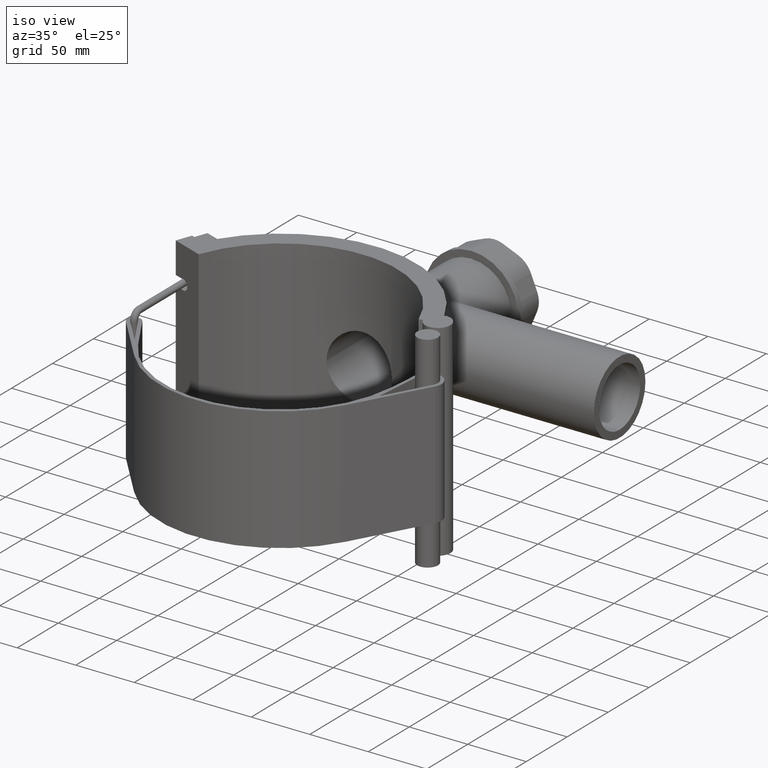
[diagram: clean part render]
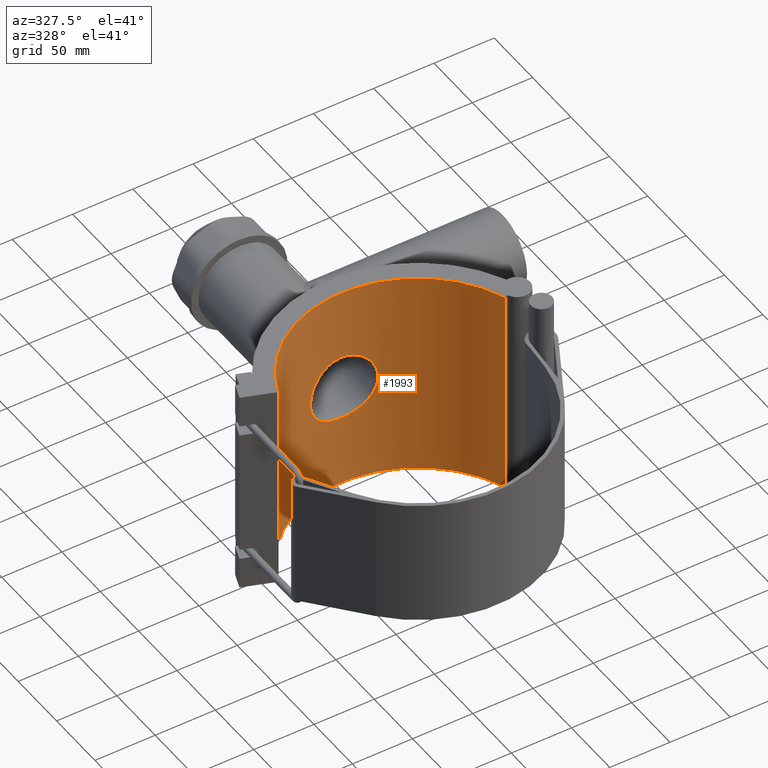
[diagram: tour spotlight — one face highlighted and labeled with its STEP entity id]
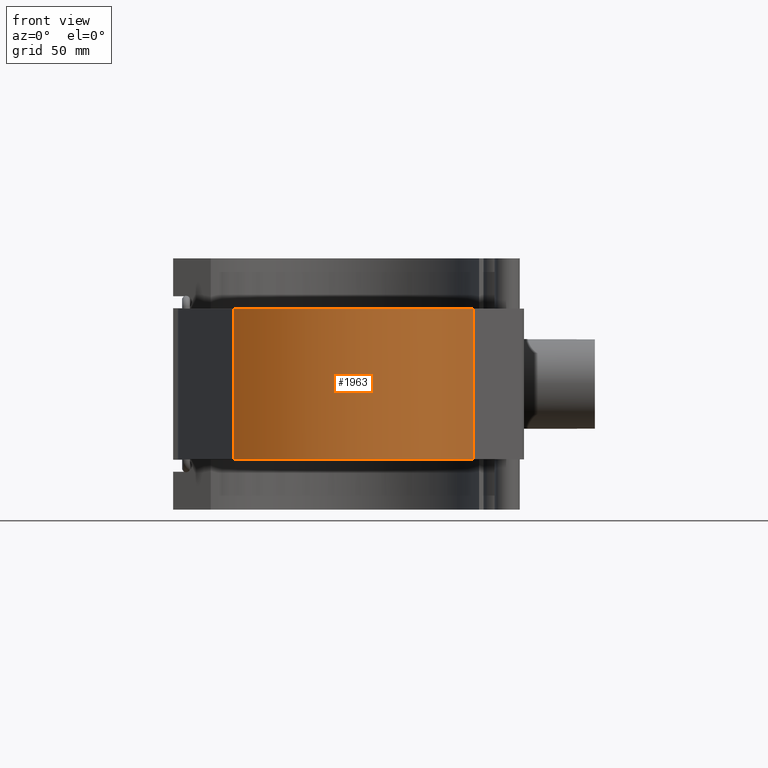
[diagram: tour spotlight — one face highlighted and labeled with its STEP entity id]
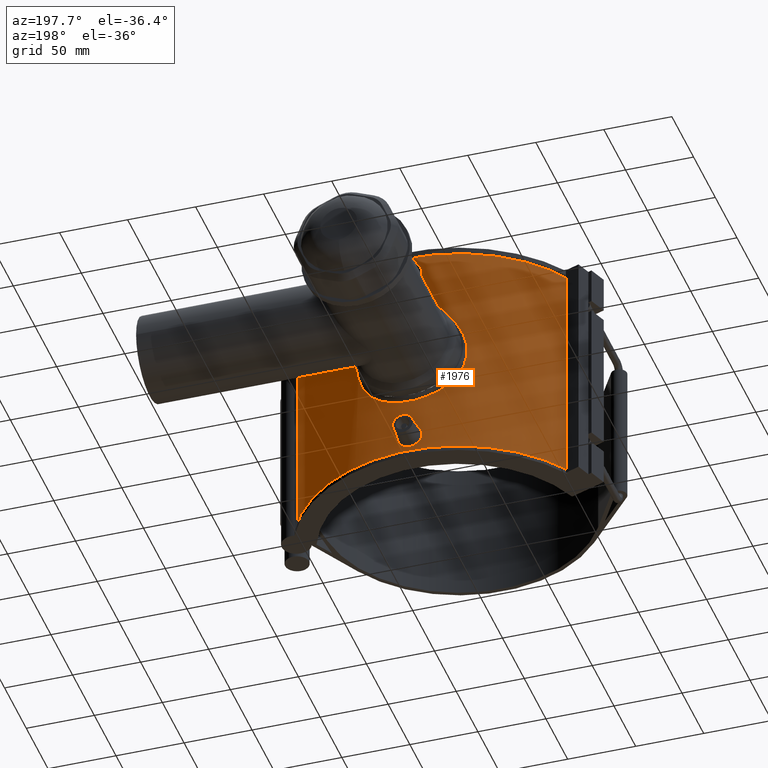
[diagram: tour spotlight — one face highlighted and labeled with its STEP entity id]
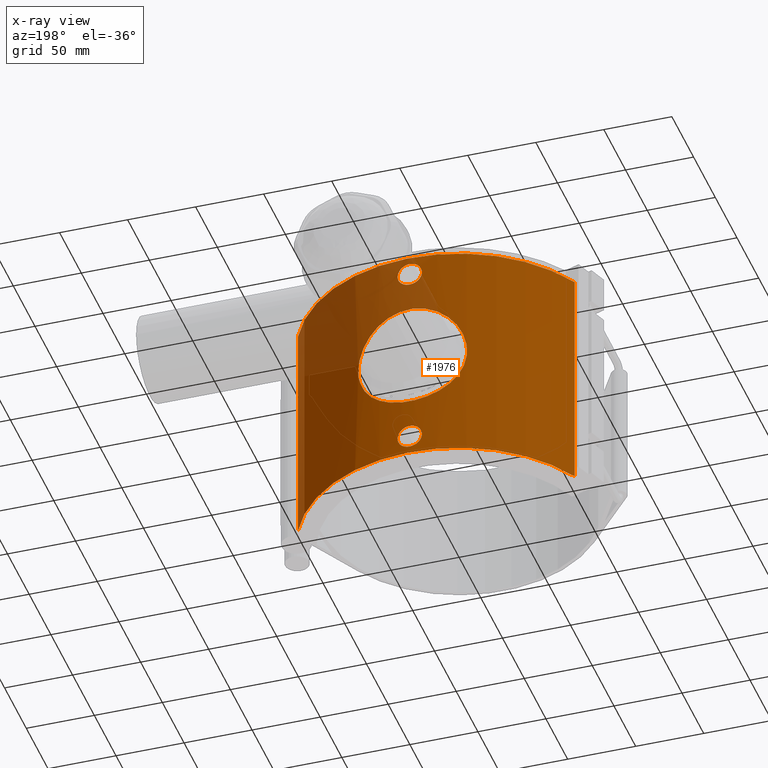
[diagram: x-ray of the same camera — body ghosted, this tour face saturated]
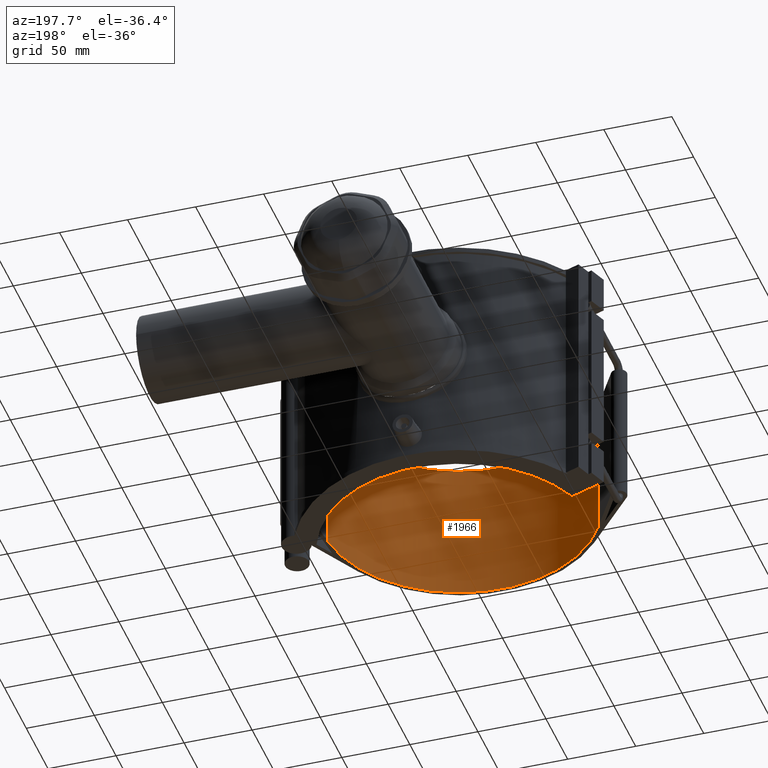
[diagram: tour spotlight — one face highlighted and labeled with its STEP entity id]
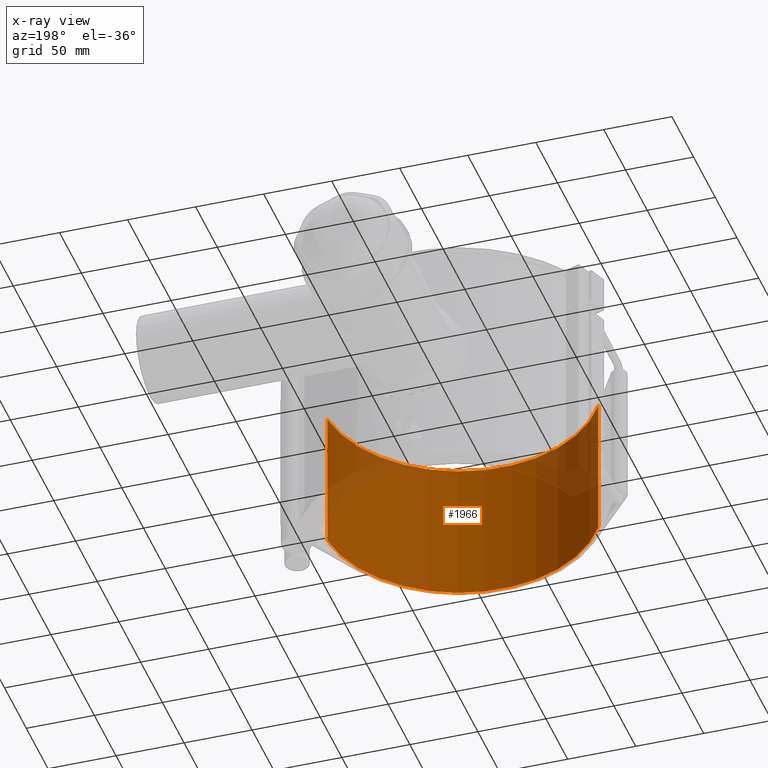
[diagram: x-ray of the same camera — body ghosted, this tour face saturated]
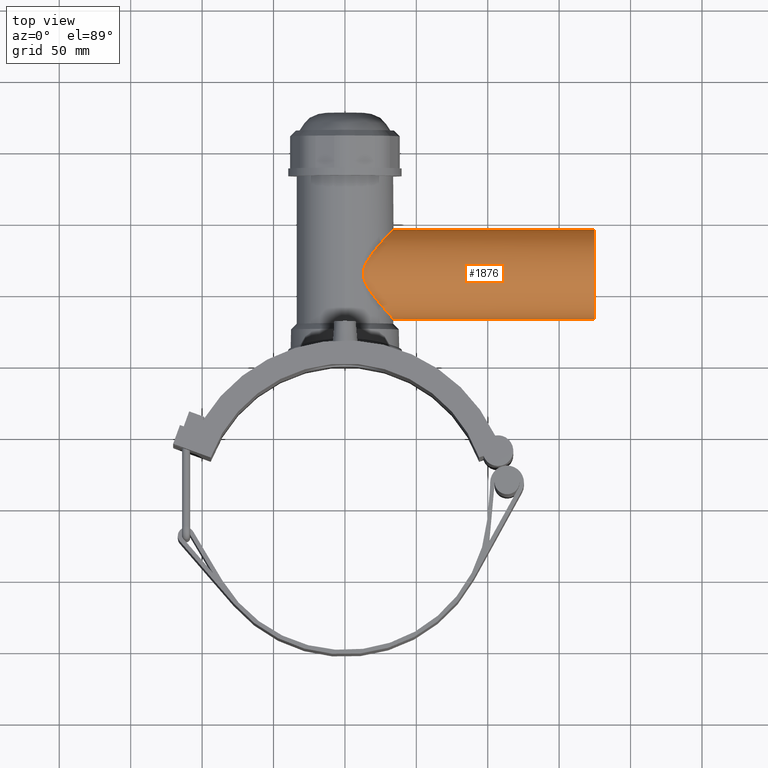
[diagram: tour spotlight — one face highlighted and labeled with its STEP entity id]
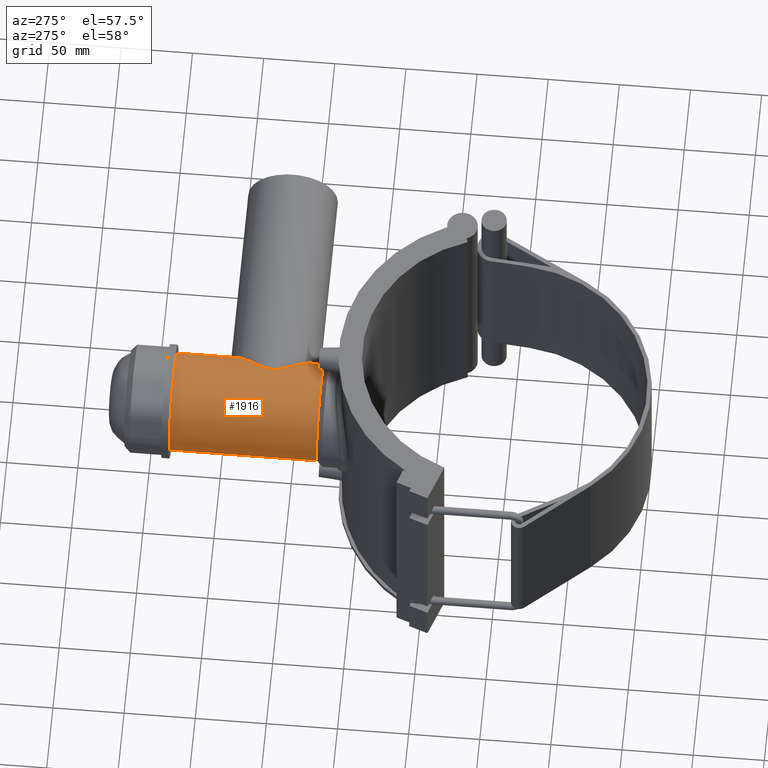
[diagram: tour spotlight — one face highlighted and labeled with its STEP entity id]
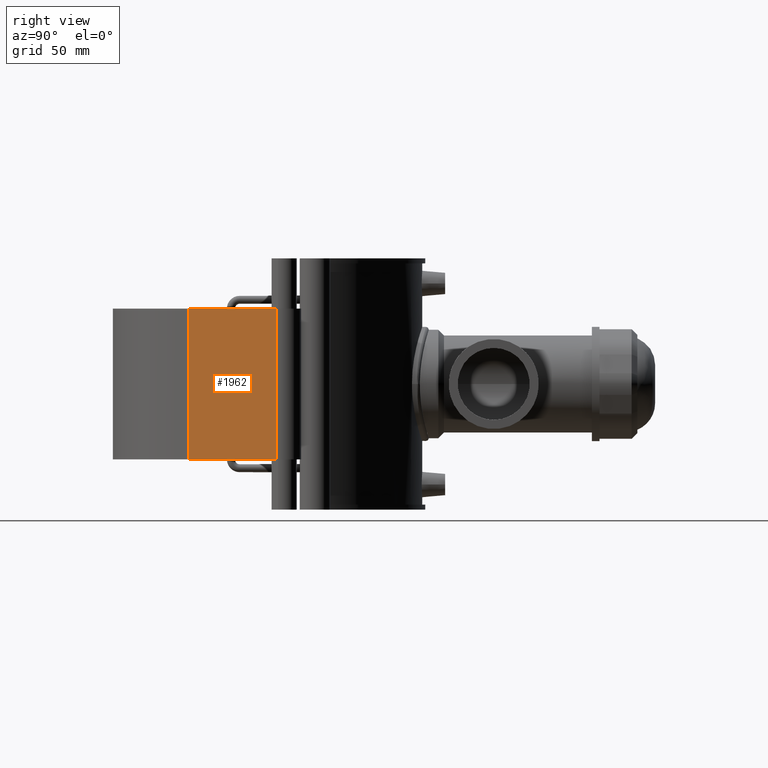
[diagram: tour spotlight — one face highlighted and labeled with its STEP entity id]
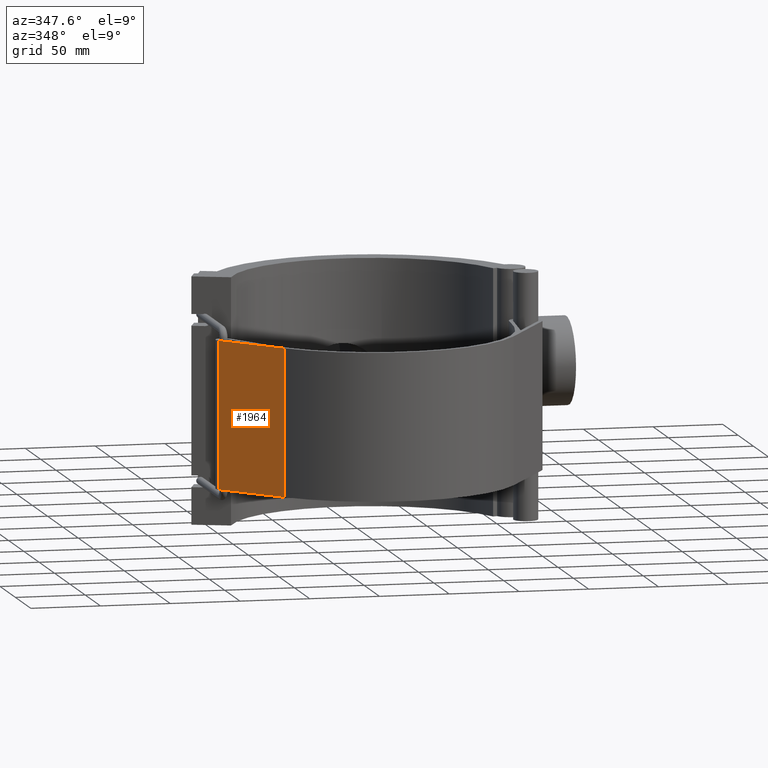
[diagram: tour spotlight — one face highlighted and labeled with its STEP entity id]
A machine part: a face-by-face anatomy tour. The part has 121 B-rep faces; the first image is the clean iso view, then the 8 largest visible faces are spotlighted one at a time (largest first), each with its STEP entity span.

Face 1 — auxiliary view, entity #1993. In plain terms, the highlighted cylindrical surface (partial cylindrical patch) has radius 100 mm, axis along (0, 0, 1).
Definition (entity closure, byte-faithful):
#138=LINE('',#3491,#299);
#199=LINE('',#3643,#360);
#299=VECTOR('',#2559,176.);
#360=VECTOR('',#2726,176.);
#399=FACE_BOUND('',#732,.T.);
#400=B_SPLINE_CURVE_WITH_KNOTS('',3,(#2801,#2802,#2803,#2804,#2805,#2806,
#2807,#2808,#2809,#2810,#2811,#2812,#2813,#2814,#2815,#2816,#2817,#2818,
#2819,#2820,#2821,#2822,#2823,#2824,#2825,#2826,#2827,#2828,#2829,#2830,
#2831,#2832,#2833,#2834,#2835,#2836,#2837,#2838,#2839,#2840,#2841,#2842,
#2843,#2844,#2845,#2846,#2847,#2848,#2849,#2850,#2851,#2852,#2853,#2854,
#2855,#2856,#2857,#2858,#2859,#2860,#2861,#2862,#2863,#2864,#2865,#2866),
 .UNSPECIFIED.,.T.,.F.,(4,2,2,2,2,2,2,2,2,2,2,2,2,2,2,2,2,2,2,2,2,2,2,2,
2,2,2,2,2,2,2,2,4),(0.,0.530492583423776,1.06098516684755,1.59147775027133,
2.1219703336951,2.65234436733511,3.18271840097511,3.71309243461512,4.24346646825513,
4.77384050189513,5.30421453553514,5.83458856917514,6.36496260281515,6.89545518623892,
7.4259477696627,7.95644035308648,8.48693293651025,9.01742551993403,9.5479181033578,
10.0784106867816,10.6089032702054,11.1392773038454,11.6696513374854,12.2000253711254,
12.7303994047654,13.2607734384054,13.7911474720454,14.3215215056854,14.8518955393254,
15.3823881227492,15.912880706173,16.4433732895967,16.9738658730205),
 .UNSPECIFIED.);
#451=CYLINDRICAL_SURFACE('',#2207,100.);
#572=FACE_OUTER_BOUND('',#731,.T.);
#731=EDGE_LOOP('',(#1800,#1801,#1802,#1803));
#732=EDGE_LOOP('',(#1804));
#793=CIRCLE('',#2145,100.);
#798=CIRCLE('',#2151,100.);
#819=VERTEX_POINT('',#2800);
#942=VERTEX_POINT('',#3488);
#943=VERTEX_POINT('',#3490);
#970=VERTEX_POINT('',#3583);
#975=VERTEX_POINT('',#3595);
#997=EDGE_CURVE('',#819,#819,#400,.T.);
#1168=EDGE_CURVE('',#943,#942,#138,.T.);
#1216=EDGE_CURVE('',#943,#970,#793,.T.);
#1223=EDGE_CURVE('',#975,#942,#798,.T.);
#1245=EDGE_CURVE('',#975,#970,#199,.T.);
#1800=ORIENTED_EDGE('',*,*,#1168,.T.);
#1801=ORIENTED_EDGE('',*,*,#1223,.F.);
#1802=ORIENTED_EDGE('',*,*,#1245,.T.);
#1803=ORIENTED_EDGE('',*,*,#1216,.F.);
#1804=ORIENTED_EDGE('',*,*,#997,.T.);
#1993=ADVANCED_FACE('',(#572,#399),#451,.F.);
#2145=AXIS2_PLACEMENT_3D('',#3584,#2649,#2650);
#2151=AXIS2_PLACEMENT_3D('',#3597,#2663,#2664);
#2207=AXIS2_PLACEMENT_3D('',#3951,#2793,#2794);
#2559=DIRECTION('',(0.,0.,-1.));
#2649=DIRECTION('center_axis',(0.,0.,-1.));
#2650=DIRECTION('ref_axis',(-1.,0.,0.));
#2663=DIRECTION('center_axis',(0.,0.,1.));
#2664=DIRECTION('ref_axis',(-1.,0.,0.));
#2726=DIRECTION('',(0.,0.,1.));
#2793=DIRECTION('center_axis',(0.,0.,1.));
#2794=DIRECTION('ref_axis',(-1.,0.,0.));
#2800=CARTESIAN_POINT('',(-28.,96.,3.94129173741931E-14));
#2801=CARTESIAN_POINT('Ctrl Pts',(-28.,96.,3.94129173741931E-14));
#2802=CARTESIAN_POINT('Ctrl Pts',(-28.,96.,1.76830861141263));
#2803=CARTESIAN_POINT('Ctrl Pts',(-27.8297876242777,96.0501978953549,3.59377193935695));
#2804=CARTESIAN_POINT('Ctrl Pts',(-27.1164585301269,96.2540143142053,7.21872238617078));
#2805=CARTESIAN_POINT('Ctrl Pts',(-26.5735303686047,96.40745078722,9.01825684093428));
#2806=CARTESIAN_POINT('Ctrl Pts',(-25.1419537487875,96.7906566116477,12.4644967652472));
#2807=CARTESIAN_POINT('Ctrl Pts',(-24.252168578379,97.0203357668782,14.1141279582952));
#2808=CARTESIAN_POINT('Ctrl Pts',(-22.1996770377959,97.5104485292095,17.162477337853));
#2809=CARTESIAN_POINT('Ctrl Pts',(-21.0368110545167,97.770380457094,18.56116869193));
#2810=CARTESIAN_POINT('Ctrl Pts',(-18.5614453092437,98.2703757468892,21.036534437203));
#2811=CARTESIAN_POINT('Ctrl Pts',(-17.1628836633428,98.5282542931996,22.1993683866799));
#2812=CARTESIAN_POINT('Ctrl Pts',(-14.1144568129821,99.0109265614553,24.2519822150845));
#2813=CARTESIAN_POINT('Ctrl Pts',(-12.4646185198509,99.2352648833692,25.1419091205725));
#2814=CARTESIAN_POINT('Ctrl Pts',(-9.01797001780083,99.6076338827722,26.5736435664283));
#2815=CARTESIAN_POINT('Ctrl Pts',(-7.21824039950206,99.7556605019272,27.1165883314968));
#2816=CARTESIAN_POINT('Ctrl Pts',(-3.59323359187856,99.951905779708,27.829858597615));
#2817=CARTESIAN_POINT('Ctrl Pts',(-1.76791344546669,100.,28.));
#2818=CARTESIAN_POINT('Ctrl Pts',(1.76791344546668,100.,28.));
#2819=CARTESIAN_POINT('Ctrl Pts',(3.59323359187855,99.951905779708,27.829858597615));
#2820=CARTESIAN_POINT('Ctrl Pts',(7.21824039950204,99.7556605019272,27.1165883314968));
#2821=CARTESIAN_POINT('Ctrl Pts',(9.01797001780081,99.6076338827722,26.5736435664283));
#2822=CARTESIAN_POINT('Ctrl Pts',(12.4646185198509,99.2352648833692,25.1419091205725));
#2823=CARTESIAN_POINT('Ctrl Pts',(14.114456812982,99.0109265614553,24.2519822150846));
#2824=CARTESIAN_POINT('Ctrl Pts',(17.1628836633428,98.5282542931996,22.19936838668));
#2825=CARTESIAN_POINT('Ctrl Pts',(18.5614453092437,98.2703757468892,21.036534437203));
#2826=CARTESIAN_POINT('Ctrl Pts',(21.0368110545167,97.770380457094,18.56116869193));
#2827=CARTESIAN_POINT('Ctrl Pts',(22.1996770377959,97.5104485292095,17.162477337853));
#2828=CARTESIAN_POINT('Ctrl Pts',(24.252168578379,97.0203357668782,14.1141279582952));
#2829=CARTESIAN_POINT('Ctrl Pts',(25.1419537487875,96.7906566116477,12.4644967652472));
#2830=CARTESIAN_POINT('Ctrl Pts',(26.5735303686047,96.40745078722,9.01825684093429));
#2831=CARTESIAN_POINT('Ctrl Pts',(27.1164585301269,96.2540143142053,7.21872238617078));
#2832=CARTESIAN_POINT('Ctrl Pts',(27.8297876242777,96.0501978953549,3.59377193935695));
#2833=CARTESIAN_POINT('Ctrl Pts',(28.,96.,1.76830861141263));
#2834=CARTESIAN_POINT('Ctrl Pts',(28.,96.,-1.76830861141255));
#2835=CARTESIAN_POINT('Ctrl Pts',(27.8297876242777,96.0501978953549,-3.59377193935687));
#2836=CARTESIAN_POINT('Ctrl Pts',(27.1164585301269,96.2540143142053,-7.2187223861707));
#2837=CARTESIAN_POINT('Ctrl Pts',(26.5735303686047,96.40745078722,-9.0182568409342));
#2838=CARTESIAN_POINT('Ctrl Pts',(25.1419537487875,96.7906566116477,-12.4644967652471));
#2839=CARTESIAN_POINT('Ctrl Pts',(24.252168578379,97.0203357668782,-14.1141279582951));
#2840=CARTESIAN_POINT('Ctrl Pts',(22.1996770377959,97.5104485292095,-17.1624773378529));
#2841=CARTESIAN_POINT('Ctrl Pts',(21.0368110545167,97.770380457094,-18.5611686919299));
#2842=CARTESIAN_POINT('Ctrl Pts',(18.5614453092437,98.2703757468892,-21.0365344372029));
#2843=CARTESIAN_POINT('Ctrl Pts',(17.1628836633428,98.5282542931996,-22.1993683866799));
#2844=CARTESIAN_POINT('Ctrl Pts',(14.114456812982,99.0109265614553,-24.2519822150845));
#2845=CARTESIAN_POINT('Ctrl Pts',(12.4646185198509,99.2352648833692,-25.1419091205724));
#2846=CARTESIAN_POINT('Ctrl Pts',(9.01797001780083,99.6076338827722,-26.5736435664282));
#2847=CARTESIAN_POINT('Ctrl Pts',(7.21824039950207,99.7556605019272,-27.1165883314967));
#2848=CARTESIAN_POINT('Ctrl Pts',(3.59323359187857,99.951905779708,-27.8298585976149));
#2849=CARTESIAN_POINT('Ctrl Pts',(1.7679134454667,100.,-27.9999999999999));
#2850=CARTESIAN_POINT('Ctrl Pts',(-1.76791344546668,100.,-27.9999999999999));
#2851=CARTESIAN_POINT('Ctrl Pts',(-3.59323359187855,99.951905779708,-27.8298585976149));
#2852=CARTESIAN_POINT('Ctrl Pts',(-7.21824039950205,99.7556605019272,-27.1165883314967));
#2853=CARTESIAN_POINT('Ctrl Pts',(-9.01797001780081,99.6076338827722,-26.5736435664282));
#2854=CARTESIAN_POINT('Ctrl Pts',(-12.4646185198509,99.2352648833692,-25.1419091205725));
#2855=CARTESIAN_POINT('Ctrl Pts',(-14.114456812982,99.0109265614553,-24.2519822150845));
#2856=CARTESIAN_POINT('Ctrl Pts',(-17.1628836633428,98.5282542931996,-22.1993683866799));
#2857=CARTESIAN_POINT('Ctrl Pts',(-18.5614453092436,98.2703757468892,-21.0365344372029));
#2858=CARTESIAN_POINT('Ctrl Pts',(-21.0368110545167,97.770380457094,-18.5611686919299));
#2859=CARTESIAN_POINT('Ctrl Pts',(-22.1996770377959,97.5104485292096,-17.1624773378529));
#2860=CARTESIAN_POINT('Ctrl Pts',(-24.252168578379,97.0203357668783,-14.1141279582951));
#2861=CARTESIAN_POINT('Ctrl Pts',(-25.1419537487875,96.7906566116477,-12.4644967652471));
#2862=CARTESIAN_POINT('Ctrl Pts',(-26.5735303686047,96.40745078722,-9.01825684093421));
#2863=CARTESIAN_POINT('Ctrl Pts',(-27.1164585301269,96.2540143142053,-7.2187223861707));
#2864=CARTESIAN_POINT('Ctrl Pts',(-27.8297876242777,96.0501978953549,-3.59377193935687));
#2865=CARTESIAN_POINT('Ctrl Pts',(-28.,96.,-1.76830861141254));
#2866=CARTESIAN_POINT('Ctrl Pts',(-28.,96.,4.10782519111308E-14));
#3488=CARTESIAN_POINT('',(-93.9692620785908,34.2020143325669,-88.));
#3490=CARTESIAN_POINT('',(-93.9692620785908,34.2020143325669,88.));
#3491=CARTESIAN_POINT('',(-93.9692620785908,34.2020143325669,0.));
#3583=CARTESIAN_POINT('',(93.9692620785908,34.2020143325669,88.));
#3584=CARTESIAN_POINT('Origin',(0.,0.,88.));
#3595=CARTESIAN_POINT('',(93.9692620785908,34.2020143325669,-88.));
#3597=CARTESIAN_POINT('Origin',(0.,0.,-88.));
#3643=CARTESIAN_POINT('',(93.9692620785908,34.2020143325669,0.));
#3951=CARTESIAN_POINT('Origin',(0.,0.,0.));

Face 2 — front view, entity #1963. In plain terms, the highlighted cylindrical surface (partial cylindrical patch) has radius 103 mm, axis along (0, 0, 1).
Definition (entity closure, byte-faithful):
#190=LINE('',#3613,#351);
#191=LINE('',#3615,#352);
#351=VECTOR('',#2687,105.6);
#352=VECTOR('',#2690,105.6);
#437=CYLINDRICAL_SURFACE('',#2159,103.);
#542=FACE_OUTER_BOUND('',#684,.T.);
#684=EDGE_LOOP('',(#1699,#1700,#1701,#1702));
#769=CIRCLE('',#2082,103.);
#777=CIRCLE('',#2091,103.);
#891=VERTEX_POINT('',#3347);
#892=VERTEX_POINT('',#3349);
#906=VERTEX_POINT('',#3379);
#907=VERTEX_POINT('',#3381);
#1105=EDGE_CURVE('',#891,#892,#769,.T.);
#1121=EDGE_CURVE('',#906,#907,#777,.T.);
#1232=EDGE_CURVE('',#891,#907,#190,.T.);
#1233=EDGE_CURVE('',#892,#906,#191,.T.);
#1699=ORIENTED_EDGE('',*,*,#1232,.T.);
#1700=ORIENTED_EDGE('',*,*,#1121,.F.);
#1701=ORIENTED_EDGE('',*,*,#1233,.F.);
#1702=ORIENTED_EDGE('',*,*,#1105,.F.);
#1963=ADVANCED_FACE('',(#542),#437,.T.);
#2082=AXIS2_PLACEMENT_3D('',#3350,#2446,#2447);
#2091=AXIS2_PLACEMENT_3D('',#3382,#2472,#2473);
#2159=AXIS2_PLACEMENT_3D('',#3614,#2688,#2689);
#2446=DIRECTION('center_axis',(0.,0.,-1.));
#2447=DIRECTION('ref_axis',(0.988586012507429,0.150657545030644,0.));
#2472=DIRECTION('center_axis',(0.,0.,1.));
#2473=DIRECTION('ref_axis',(0.988586012507429,0.150657545030644,0.));
#2687=DIRECTION('',(0.,0.,1.));
#2688=DIRECTION('center_axis',(0.,0.,1.));
#2689=DIRECTION('ref_axis',(0.988586012507429,0.150657545030644,0.));
#2690=DIRECTION('',(0.,0.,1.));
#3347=CARTESIAN_POINT('',(90.2578954211151,-49.6237071786365,-52.8));
#3349=CARTESIAN_POINT('',(-77.8991145930519,-67.3849237264432,-52.8));
#3350=CARTESIAN_POINT('Origin',(0.,0.,-52.8));
#3379=CARTESIAN_POINT('',(-77.8991145930519,-67.3849237264432,52.8));
#3381=CARTESIAN_POINT('',(90.2578954211151,-49.6237071786365,52.8));
#3382=CARTESIAN_POINT('Origin',(0.,0.,52.8));
#3613=CARTESIAN_POINT('',(90.2578954211151,-49.6237071786365,0.));
#3614=CARTESIAN_POINT('Origin',(0.,0.,0.));
#3615=CARTESIAN_POINT('',(-77.8991145930519,-67.3849237264432,0.));

Face 3 — auxiliary view, entity #1976. An x-ray twin of the same camera follows (body ghosted, this face saturated) — the face is partly hidden behind the body. In plain terms, the highlighted cylindrical surface (partial cylindrical patch) has radius 114 mm, axis along (0, 0, 1).
Definition (entity closure, byte-faithful):
#159=LINE('',#3545,#320);
#197=LINE('',#3638,#358);
#320=VECTOR('',#2616,168.96);
#358=VECTOR('',#2720,168.96);
#385=FACE_BOUND('',#701,.T.);
#386=FACE_BOUND('',#702,.T.);
#387=FACE_BOUND('',#703,.T.);
#410=B_SPLINE_CURVE_WITH_KNOTS('',3,(#3651,#3652,#3653,#3654,#3655,#3656,
#3657,#3658,#3659,#3660,#3661,#3662,#3663,#3664,#3665,#3666,#3667,#3668,
#3669,#3670,#3671,#3672,#3673,#3674,#3675,#3676,#3677,#3678,#3679,#3680,
#3681,#3682,#3683,#3684,#3685,#3686,#3687,#3688,#3689,#3690,#3691,#3692,
#3693,#3694,#3695,#3696,#3697,#3698,#3699,#3700,#3701,#3702,#3703,#3704,
#3705,#3706,#3707,#3708,#3709,#3710,#3711,#3712,#3713,#3714,#3715,#3716),
 .UNSPECIFIED.,.T.,.F.,(4,2,2,2,2,2,2,2,2,2,2,2,2,2,2,2,2,2,2,2,2,2,2,2,
2,2,2,2,2,2,2,2,4),(0.,0.760647952222609,1.52129590444522,2.28194385666783,
3.04259180889044,3.8028012971106,4.56301078533076,5.32322027355092,6.08342976177108,
6.84363924999124,7.60384873821141,8.36405822643157,9.12426771465173,9.88491566687434,
10.6455636190969,11.4062115713196,12.1668595235422,12.9275074757648,13.6881554279874,
14.44880338021,15.2094513324326,15.9696608206528,16.7298703088729,17.4900797970931,
18.2502892853133,19.0104987735334,19.7707082617536,20.5309177499737,21.2911272381939,
22.0517751904165,22.8124231426391,23.5730710948617,24.3337190470843),
 .UNSPECIFIED.);
#411=B_SPLINE_CURVE_WITH_KNOTS('',3,(#3718,#3719,#3720,#3721,#3722,#3723,
#3724,#3725,#3726,#3727,#3728,#3729,#3730,#3731,#3732,#3733,#3734,#3735,
#3736,#3737,#3738,#3739,#3740,#3741,#3742,#3743,#3744,#3745,#3746,#3747,
#3748,#3749,#3750,#3751),.UNSPECIFIED.,.T.,.F.,(4,2,2,2,2,2,2,2,2,2,2,2,
2,2,2,2,4),(0.,0.336102137266977,0.672204274533955,1.00804160752224,1.34387894051053,
1.67971627349881,2.0155536064871,2.35165574375408,2.68775788102105,3.02386001828803,
3.35996215555501,3.69579948854329,4.03163682153158,4.36747415451987,4.70331148750815,
5.03941362477513,5.37551576204211),.UNSPECIFIED.);
#412=B_SPLINE_CURVE_WITH_KNOTS('',3,(#3753,#3754,#3755,#3756,#3757,#3758,
#3759,#3760,#3761,#3762,#3763,#3764,#3765,#3766,#3767,#3768,#3769,#3770,
#3771,#3772,#3773,#3774,#3775,#3776,#3777,#3778,#3779,#3780,#3781,#3782,
#3783,#3784,#3785,#3786),.UNSPECIFIED.,.T.,.F.,(4,2,2,2,2,2,2,2,2,2,2,2,
2,2,2,2,4),(0.,0.336102137266977,0.672204274533955,1.00804160752224,1.34387894051053,
1.67971627349881,2.0155536064871,2.35165574375408,2.68775788102105,3.02386001828803,
3.35996215555501,3.69579948854329,4.03163682153158,4.36747415451987,4.70331148750815,
5.03941362477513,5.37551576204211),.UNSPECIFIED.);
#444=CYLINDRICAL_SURFACE('',#2178,114.);
#555=FACE_OUTER_BOUND('',#700,.T.);
#700=EDGE_LOOP('',(#1754,#1755,#1756,#1757));
#701=EDGE_LOOP('',(#1758));
#702=EDGE_LOOP('',(#1759));
#703=EDGE_LOOP('',(#1760));
#804=CIRCLE('',#2177,114.);
#805=CIRCLE('',#2179,114.);
#956=VERTEX_POINT('',#3541);
#958=VERTEX_POINT('',#3544);
#979=VERTEX_POINT('',#3635);
#980=VERTEX_POINT('',#3637);
#982=VERTEX_POINT('',#3650);
#983=VERTEX_POINT('',#3717);
#984=VERTEX_POINT('',#3752);
#1195=EDGE_CURVE('',#958,#956,#159,.T.);
#1242=EDGE_CURVE('',#980,#979,#197,.T.);
#1247=EDGE_CURVE('',#956,#980,#804,.T.);
#1248=EDGE_CURVE('',#979,#958,#805,.T.);
#1249=EDGE_CURVE('',#982,#982,#410,.T.);
#1250=EDGE_CURVE('',#983,#983,#411,.T.);
#1251=EDGE_CURVE('',#984,#984,#412,.T.);
#1754=ORIENTED_EDGE('',*,*,#1195,.T.);
#1755=ORIENTED_EDGE('',*,*,#1247,.T.);
#1756=ORIENTED_EDGE('',*,*,#1242,.T.);
#1757=ORIENTED_EDGE('',*,*,#1248,.T.);
#1758=ORIENTED_EDGE('',*,*,#1249,.T.);
#1759=ORIENTED_EDGE('',*,*,#1250,.T.);
#1760=ORIENTED_EDGE('',*,*,#1251,.T.);
#1976=ADVANCED_FACE('',(#555,#385,#386,#387),#444,.T.);
#2177=AXIS2_PLACEMENT_3D('',#3647,#2733,#2734);
#2178=AXIS2_PLACEMENT_3D('',#3648,#2735,#2736);
#2179=AXIS2_PLACEMENT_3D('',#3649,#2737,#2738);
#2616=DIRECTION('',(0.,0.,1.));
#2720=DIRECTION('',(0.,0.,-1.));
#2733=DIRECTION('center_axis',(0.,0.,-1.));
#2734=DIRECTION('ref_axis',(1.,0.,0.));
#2735=DIRECTION('center_axis',(0.,0.,1.));
#2736=DIRECTION('ref_axis',(1.,0.,0.));
#2737=DIRECTION('center_axis',(0.,0.,1.));
#2738=DIRECTION('ref_axis',(1.,0.,0.));
#3541=CARTESIAN_POINT('',(-101.525801895629,51.8508587146788,84.48));
#3544=CARTESIAN_POINT('',(-101.525801895629,51.8508587146788,-84.48));
#3545=CARTESIAN_POINT('',(-101.525801895629,51.8508587146788,0.));
#3635=CARTESIAN_POINT('',(102.967784249054,48.9247933755505,-84.48));
#3637=CARTESIAN_POINT('',(102.967784249054,48.9247933755505,84.48));
#3638=CARTESIAN_POINT('',(102.967784249054,48.9247933755505,0.));
#3647=CARTESIAN_POINT('Origin',(0.,0.,84.48));
#3648=CARTESIAN_POINT('Origin',(0.,0.,0.));
#3649=CARTESIAN_POINT('Origin',(0.,0.,-84.48));
#3650=CARTESIAN_POINT('',(40.,106.75204916066,1.88737914186277E-14));
#3651=CARTESIAN_POINT('Ctrl Pts',(40.,106.75204916066,1.11022302462516E-15));
#3652=CARTESIAN_POINT('Ctrl Pts',(40.,106.75204916066,2.53549317407536));
#3653=CARTESIAN_POINT('Ctrl Pts',(39.7550475114249,106.84490201709,5.14984591547766));
#3654=CARTESIAN_POINT('Ctrl Pts',(38.7319004507554,107.220039062905,10.3355988499144));
#3655=CARTESIAN_POINT('Ctrl Pts',(37.9540105848973,107.50192514406,12.9070879479991));
#3656=CARTESIAN_POINT('Ctrl Pts',(35.9066696708571,108.202965649266,17.8272562317298));
#3657=CARTESIAN_POINT('Ctrl Pts',(34.6355950394345,108.62190697547,20.1802659544724));
#3658=CARTESIAN_POINT('Ctrl Pts',(31.7066118951435,109.51271104526,24.5266862906721));
#3659=CARTESIAN_POINT('Ctrl Pts',(30.0484387987044,109.983670443605,26.5201036962194));
#3660=CARTESIAN_POINT('Ctrl Pts',(26.5211206239101,110.887072181654,30.0474218710137));
#3661=CARTESIAN_POINT('Ctrl Pts',(24.528186355914,111.35205607136,31.7054707704956));
#3662=CARTESIAN_POINT('Ctrl Pts',(20.1814991468893,112.221296594472,34.6348941835836));
#3663=CARTESIAN_POINT('Ctrl Pts',(17.8277385696762,112.624773108677,35.90648879335));
#3664=CARTESIAN_POINT('Ctrl Pts',(12.9060682572406,113.294312224824,37.9544150592687));
#3665=CARTESIAN_POINT('Ctrl Pts',(10.333850272777,113.560408092164,38.7323733018653));
#3666=CARTESIAN_POINT('Ctrl Pts',(5.14786790468786,113.913362708501,39.7553098227726));
#3667=CARTESIAN_POINT('Ctrl Pts',(2.53403162740054,114.,40.));
#3668=CARTESIAN_POINT('Ctrl Pts',(-2.53403162740054,114.,40.));
#3669=CARTESIAN_POINT('Ctrl Pts',(-5.14786790468785,113.913362708501,39.7553098227726));
#3670=CARTESIAN_POINT('Ctrl Pts',(-10.333850272777,113.560408092164,38.7323733018653));
#3671=CARTESIAN_POINT('Ctrl Pts',(-12.9060682572405,113.294312224824,37.9544150592687));
#3672=CARTESIAN_POINT('Ctrl Pts',(-17.8277385696762,112.624773108677,35.90648879335));
#3673=CARTESIAN_POINT('Ctrl Pts',(-20.1814991468893,112.221296594472,34.6348941835836));
#3674=CARTESIAN_POINT('Ctrl Pts',(-24.528186355914,111.35205607136,31.7054707704956));
#3675=CARTESIAN_POINT('Ctrl Pts',(-26.5211206239101,110.887072181654,30.0474218710137));
#3676=CARTESIAN_POINT('Ctrl Pts',(-30.0484387987044,109.983670443605,26.5201036962194));
#3677=CARTESIAN_POINT('Ctrl Pts',(-31.7066118951435,109.51271104526,24.5266862906721));
#3678=CARTESIAN_POINT('Ctrl Pts',(-34.6355950394345,108.62190697547,20.1802659544724));
#3679=CARTESIAN_POINT('Ctrl Pts',(-35.9066696708571,108.202965649266,17.8272562317298));
#3680=CARTESIAN_POINT('Ctrl Pts',(-37.9540105848973,107.50192514406,12.9070879479991));
#3681=CARTESIAN_POINT('Ctrl Pts',(-38.7319004507554,107.220039062905,10.3355988499144));
#3682=CARTESIAN_POINT('Ctrl Pts',(-39.7550475114249,106.84490201709,5.14984591547766));
#3683=CARTESIAN_POINT('Ctrl Pts',(-40.,106.75204916066,2.53549317407536));
#3684=CARTESIAN_POINT('Ctrl Pts',(-40.,106.75204916066,-2.53549317407536));
#3685=CARTESIAN_POINT('Ctrl Pts',(-39.7550475114249,106.84490201709,-5.14984591547766));
#3686=CARTESIAN_POINT('Ctrl Pts',(-38.7319004507554,107.220039062905,-10.3355988499144));
#3687=CARTESIAN_POINT('Ctrl Pts',(-37.9540105848973,107.50192514406,-12.9070879479991));
#3688=CARTESIAN_POINT('Ctrl Pts',(-35.9066696708571,108.202965649266,-17.8272562317298));
#3689=CARTESIAN_POINT('Ctrl Pts',(-34.6355950394345,108.62190697547,-20.1802659544724));
#3690=CARTESIAN_POINT('Ctrl Pts',(-31.7066118951435,109.51271104526,-24.5266862906721));
#3691=CARTESIAN_POINT('Ctrl Pts',(-30.0484387987044,109.983670443605,-26.5201036962194));
#3692=CARTESIAN_POINT('Ctrl Pts',(-26.5211206239101,110.887072181654,-30.0474218710137));
#3693=CARTESIAN_POINT('Ctrl Pts',(-24.528186355914,111.35205607136,-31.7054707704956));
#3694=CARTESIAN_POINT('Ctrl Pts',(-20.1814991468894,112.221296594472,-34.6348941835836));
#3695=CARTESIAN_POINT('Ctrl Pts',(-17.8277385696762,112.624773108677,-35.90648879335));
#3696=CARTESIAN_POINT('Ctrl Pts',(-12.9060682572406,113.294312224824,-37.9544150592687));
#3697=CARTESIAN_POINT('Ctrl Pts',(-10.333850272777,113.560408092164,-38.7323733018653));
#3698=CARTESIAN_POINT('Ctrl Pts',(-5.14786790468787,113.913362708501,-39.7553098227725));
#3699=CARTESIAN_POINT('Ctrl Pts',(-2.53403162740055,114.,-40.));
#3700=CARTESIAN_POINT('Ctrl Pts',(2.53403162740053,114.,-40.));
#3701=CARTESIAN_POINT('Ctrl Pts',(5.14786790468786,113.913362708501,-39.7553098227725));
#3702=CARTESIAN_POINT('Ctrl Pts',(10.333850272777,113.560408092164,-38.7323733018653));
#3703=CARTESIAN_POINT('Ctrl Pts',(12.9060682572406,113.294312224824,-37.9544150592687));
#3704=CARTESIAN_POINT('Ctrl Pts',(17.8277385696762,112.624773108677,-35.90648879335));
#3705=CARTESIAN_POINT('Ctrl Pts',(20.1814991468894,112.221296594472,-34.6348941835836));
#3706=CARTESIAN_POINT('Ctrl Pts',(24.528186355914,111.35205607136,-31.7054707704956));
#3707=CARTESIAN_POINT('Ctrl Pts',(26.5211206239101,110.887072181654,-30.0474218710137));
#3708=CARTESIAN_POINT('Ctrl Pts',(30.0484387987044,109.983670443605,-26.5201036962194));
#3709=CARTESIAN_POINT('Ctrl Pts',(31.7066118951435,109.51271104526,-24.5266862906722));
#3710=CARTESIAN_POINT('Ctrl Pts',(34.6355950394345,108.62190697547,-20.1802659544724));
#3711=CARTESIAN_POINT('Ctrl Pts',(35.9066696708571,108.202965649266,-17.8272562317298));
#3712=CARTESIAN_POINT('Ctrl Pts',(37.9540105848973,107.50192514406,-12.9070879479991));
#3713=CARTESIAN_POINT('Ctrl Pts',(38.7319004507554,107.220039062905,-10.3355988499144));
#3714=CARTESIAN_POINT('Ctrl Pts',(39.7550475114249,106.84490201709,-5.14984591547766));
#3715=CARTESIAN_POINT('Ctrl Pts',(40.,106.75204916066,-2.53549317407536));
#3716=CARTESIAN_POINT('Ctrl Pts',(40.,106.75204916066,5.55111512312578E-16));
#3717=CARTESIAN_POINT('',(8.93046881410949,113.64966663726,-70.4));
#3718=CARTESIAN_POINT('Ctrl Pts',(8.93046881410949,113.64966663726,-70.4));
#3719=CARTESIAN_POINT('Ctrl Pts',(8.93046881410949,113.64966663726,-69.2796595424434));
#3720=CARTESIAN_POINT('Ctrl Pts',(8.70520683363362,113.668066985588,-68.0854140294805));
#3721=CARTESIAN_POINT('Ctrl Pts',(7.79092480084932,113.734390435385,-65.8904724180335));
#3722=CARTESIAN_POINT('Ctrl Pts',(7.10195358693505,113.781344108194,-64.8897267912334));
#3723=CARTESIAN_POINT('Ctrl Pts',(5.51503165010171,113.869291041196,-63.311550554805));
#3724=CARTESIAN_POINT('Ctrl Pts',(4.51143713823414,113.916002250275,-62.6284379526399));
#3725=CARTESIAN_POINT('Ctrl Pts',(2.31366496396978,113.981821305138,-61.7227511867393));
#3726=CARTESIAN_POINT('Ctrl Pts',(1.11945777662762,114.,-61.5001813835852));
#3727=CARTESIAN_POINT('Ctrl Pts',(-1.11945777662762,114.,-61.5001813835852));
#3728=CARTESIAN_POINT('Ctrl Pts',(-2.31366496396977,113.981821305138,-61.7227511867393));
#3729=CARTESIAN_POINT('Ctrl Pts',(-4.51143713823413,113.916002250275,-62.6284379526399));
#3730=CARTESIAN_POINT('Ctrl Pts',(-5.5150316501017,113.869291041196,-63.311550554805));
#3731=CARTESIAN_POINT('Ctrl Pts',(-7.10195358693504,113.781344108194,-64.8897267912334));
#3732=CARTESIAN_POINT('Ctrl Pts',(-7.79092480084932,113.734390435385,-65.8904724180335));
#3733=CARTESIAN_POINT('Ctrl Pts',(-8.70520683363362,113.668066985588,-68.0854140294805));
#3734=CARTESIAN_POINT('Ctrl Pts',(-8.93046881410949,113.649666637259,-69.2796595424434));
#3735=CARTESIAN_POINT('Ctrl Pts',(-8.93046881410949,113.649666637259,-71.5203404575566));
#3736=CARTESIAN_POINT('Ctrl Pts',(-8.70520683363362,113.668066985588,-72.7145859705195));
#3737=CARTESIAN_POINT('Ctrl Pts',(-7.79092480084932,113.734390435385,-74.9095275819665));
#3738=CARTESIAN_POINT('Ctrl Pts',(-7.10195358693505,113.781344108194,-75.9102732087666));
#3739=CARTESIAN_POINT('Ctrl Pts',(-5.51503165010171,113.869291041196,-77.4884494451951));
#3740=CARTESIAN_POINT('Ctrl Pts',(-4.51143713823414,113.916002250275,-78.1715620473602));
#3741=CARTESIAN_POINT('Ctrl Pts',(-2.31366496396977,113.981821305138,-79.0772488132608));
#3742=CARTESIAN_POINT('Ctrl Pts',(-1.11945777662762,114.,-79.2998186164148));
#3743=CARTESIAN_POINT('Ctrl Pts',(1.11945777662762,114.,-79.2998186164148));
#3744=CARTESIAN_POINT('Ctrl Pts',(2.31366496396977,113.981821305138,-79.0772488132608));
#3745=CARTESIAN_POINT('Ctrl Pts',(4.51143713823413,113.916002250275,-78.1715620473602));
#3746=CARTESIAN_POINT('Ctrl Pts',(5.5150316501017,113.869291041196,-77.4884494451951));
#3747=CARTESIAN_POINT('Ctrl Pts',(7.10195358693505,113.781344108194,-75.9102732087666));
#3748=CARTESIAN_POINT('Ctrl Pts',(7.79092480084932,113.734390435385,-74.9095275819665));
#3749=CARTESIAN_POINT('Ctrl Pts',(8.70520683363362,113.668066985588,-72.7145859705195));
#3750=CARTESIAN_POINT('Ctrl Pts',(8.93046881410949,113.64966663726,-71.5203404575566));
#3751=CARTESIAN_POINT('Ctrl Pts',(8.93046881410949,113.64966663726,-70.4));
#3752=CARTESIAN_POINT('',(8.93046881410949,113.64966663726,70.4));
#3753=CARTESIAN_POINT('Ctrl Pts',(-8.93046881410949,113.64966663726,70.4));
#3754=CARTESIAN_POINT('Ctrl Pts',(-8.93046881410949,113.64966663726,69.2796595424434));
#3755=CARTESIAN_POINT('Ctrl Pts',(-8.70520683363362,113.668066985588,68.0854140294805));
#3756=CARTESIAN_POINT('Ctrl Pts',(-7.79092480084932,113.734390435385,65.8904724180335));
#3757=CARTESIAN_POINT('Ctrl Pts',(-7.10195358693504,113.781344108194,64.8897267912334));
#3758=CARTESIAN_POINT('Ctrl Pts',(-5.5150316501017,113.869291041196,63.311550554805));
#3759=CARTESIAN_POINT('Ctrl Pts',(-4.51143713823414,113.916002250275,62.6284379526399));
#3760=CARTESIAN_POINT('Ctrl Pts',(-2.31366496396978,113.981821305138,61.7227511867393));
#3761=CARTESIAN_POINT('Ctrl Pts',(-1.11945777662762,114.,61.5001813835852));
#3762=CARTESIAN_POINT('Ctrl Pts',(1.11945777662762,114.,61.5001813835852));
#3763=CARTESIAN_POINT('Ctrl Pts',(2.31366496396977,113.981821305138,61.7227511867393));
#3764=CARTESIAN_POINT('Ctrl Pts',(4.51143713823413,113.916002250275,62.6284379526399));
#3765=CARTESIAN_POINT('Ctrl Pts',(5.5150316501017,113.869291041196,63.311550554805));
#3766=CARTESIAN_POINT('Ctrl Pts',(7.10195358693504,113.781344108194,64.8897267912334));
#3767=CARTESIAN_POINT('Ctrl Pts',(7.79092480084932,113.734390435385,65.8904724180335));
#3768=CARTESIAN_POINT('Ctrl Pts',(8.70520683363362,113.668066985588,68.0854140294805));
#3769=CARTESIAN_POINT('Ctrl Pts',(8.93046881410949,113.649666637259,69.2796595424434));
#3770=CARTESIAN_POINT('Ctrl Pts',(8.93046881410949,113.649666637259,71.5203404575566));
#3771=CARTESIAN_POINT('Ctrl Pts',(8.70520683363362,113.668066985588,72.7145859705195));
#3772=CARTESIAN_POINT('Ctrl Pts',(7.79092480084932,113.734390435385,74.9095275819665));
#3773=CARTESIAN_POINT('Ctrl Pts',(7.10195358693505,113.781344108194,75.9102732087666));
#3774=CARTESIAN_POINT('Ctrl Pts',(5.51503165010171,113.869291041196,77.4884494451951));
#3775=CARTESIAN_POINT('Ctrl Pts',(4.51143713823413,113.916002250275,78.1715620473602));
#3776=CARTESIAN_POINT('Ctrl Pts',(2.31366496396977,113.981821305138,79.0772488132608));
#3777=CARTESIAN_POINT('Ctrl Pts',(1.11945777662762,114.,79.2998186164148));
#3778=CARTESIAN_POINT('Ctrl Pts',(-1.11945777662762,114.,79.2998186164148));
#3779=CARTESIAN_POINT('Ctrl Pts',(-2.31366496396977,113.981821305138,79.0772488132608));
#3780=CARTESIAN_POINT('Ctrl Pts',(-4.51143713823413,113.916002250275,78.1715620473602));
#3781=CARTESIAN_POINT('Ctrl Pts',(-5.5150316501017,113.869291041196,77.4884494451951));
#3782=CARTESIAN_POINT('Ctrl Pts',(-7.10195358693504,113.781344108194,75.9102732087667));
#3783=CARTESIAN_POINT('Ctrl Pts',(-7.79092480084932,113.734390435385,74.9095275819665));
#3784=CARTESIAN_POINT('Ctrl Pts',(-8.70520683363362,113.668066985588,72.7145859705195));
#3785=CARTESIAN_POINT('Ctrl Pts',(-8.93046881410949,113.64966663726,71.5203404575566));
#3786=CARTESIAN_POINT('Ctrl Pts',(-8.93046881410949,113.64966663726,70.4));

Face 4 — auxiliary view, entity #1966. An x-ray twin of the same camera follows (body ghosted, this face saturated) — the face is partly hidden behind the body. In plain terms, the highlighted cylindrical surface (partial cylindrical patch) has radius 100 mm, axis along (0, 0, 1).
Definition (entity closure, byte-faithful):
#187=LINE('',#3608,#348);
#194=LINE('',#3620,#355);
#348=VECTOR('',#2680,105.6);
#355=VECTOR('',#2697,105.6);
#438=CYLINDRICAL_SURFACE('',#2162,100.);
#545=FACE_OUTER_BOUND('',#687,.T.);
#687=EDGE_LOOP('',(#1711,#1712,#1713,#1714));
#771=CIRCLE('',#2084,100.);
#775=CIRCLE('',#2089,100.);
#895=VERTEX_POINT('',#3355);
#896=VERTEX_POINT('',#3357);
#902=VERTEX_POINT('',#3371);
#903=VERTEX_POINT('',#3373);
#1109=EDGE_CURVE('',#895,#896,#771,.T.);
#1117=EDGE_CURVE('',#902,#903,#775,.T.);
#1229=EDGE_CURVE('',#896,#902,#187,.T.);
#1236=EDGE_CURVE('',#895,#903,#194,.T.);
#1711=ORIENTED_EDGE('',*,*,#1236,.T.);
#1712=ORIENTED_EDGE('',*,*,#1117,.F.);
#1713=ORIENTED_EDGE('',*,*,#1229,.F.);
#1714=ORIENTED_EDGE('',*,*,#1109,.F.);
#1966=ADVANCED_FACE('',(#545),#438,.F.);
#2084=AXIS2_PLACEMENT_3D('',#3358,#2452,#2453);
#2089=AXIS2_PLACEMENT_3D('',#3374,#2466,#2467);
#2162=AXIS2_PLACEMENT_3D('',#3621,#2698,#2699);
#2452=DIRECTION('center_axis',(0.,0.,1.));
#2453=DIRECTION('ref_axis',(0.859295298342617,0.511479804338621,0.));
#2466=DIRECTION('center_axis',(0.,0.,-1.));
#2467=DIRECTION('ref_axis',(0.859295298342617,0.511479804338621,0.));
#2680=DIRECTION('',(0.,0.,1.));
#2697=DIRECTION('',(0.,0.,1.));
#2698=DIRECTION('center_axis',(0.,0.,1.));
#2699=DIRECTION('ref_axis',(0.859295298342617,0.511479804338621,0.));
#3355=CARTESIAN_POINT('',(-85.9295298342617,-51.1479804338621,-52.8));
#3357=CARTESIAN_POINT('',(99.5888513608786,-9.05873526607498,-52.8));
#3358=CARTESIAN_POINT('Origin',(0.,0.,-52.8));
#3371=CARTESIAN_POINT('',(99.5888513608786,-9.05873526607498,52.8));
#3373=CARTESIAN_POINT('',(-85.9295298342617,-51.1479804338621,52.8));
#3374=CARTESIAN_POINT('Origin',(0.,0.,52.8));
#3608=CARTESIAN_POINT('',(99.5888513608786,-9.05873526607498,0.));
#3620=CARTESIAN_POINT('',(-85.9295298342617,-51.1479804338621,0.));
#3621=CARTESIAN_POINT('Origin',(0.,0.,0.));

Face 5 — top view, entity #1876. In plain terms, the highlighted cylindrical surface (bore or boss wall) has radius 31.5 mm, axis along (1, 0, 0).
Definition (entity closure, byte-faithful):
#364=FACE_BOUND('',#580,.T.);
#404=B_SPLINE_CURVE_WITH_KNOTS('',3,(#3012,#3013,#3014,#3015,#3016,#3017,
#3018,#3019,#3020,#3021,#3022,#3023,#3024,#3025,#3026,#3027,#3028,#3029,
#3030,#3031,#3032,#3033,#3034,#3035,#3036,#3037,#3038,#3039,#3040,#3041,
#3042,#3043,#3044,#3045,#3046,#3047,#3048,#3049,#3050,#3051,#3052,#3053,
#3054,#3055,#3056,#3057,#3058,#3059,#3060,#3061,#3062,#3063,#3064,#3065,
#3066,#3067,#3068,#3069,#3070,#3071,#3072,#3073,#3074,#3075,#3076,#3077),
 .UNSPECIFIED.,.T.,.F.,(4,2,2,2,2,2,2,2,2,2,2,2,2,2,2,2,2,2,2,2,2,2,2,2,
2,2,2,2,2,2,2,2,4),(0.,0.706230055131194,1.41246011026239,2.11869016539358,
2.82492022052478,3.46558302186813,4.10624582321149,4.74690862455485,5.38757142589821,
6.02823422724156,6.66889702858492,7.30955982992828,7.95022263127163,8.65645268640283,
9.36268274153402,10.0689127966652,10.7751428517964,11.4813729069276,12.1876029620588,
12.89383301719,13.6000630723212,14.2407258736645,14.8813886750079,15.5220514763512,
16.1627142776946,16.803377079038,17.4440398803813,18.0847026817247,18.725365483068,
19.4315955381992,20.1378255933304,20.8440556484616,21.5502857035928),
 .UNSPECIFIED.);
#416=CYLINDRICAL_SURFACE('',#2001,31.5);
#455=FACE_OUTER_BOUND('',#579,.T.);
#579=EDGE_LOOP('',(#1272));
#580=EDGE_LOOP('',(#1273));
#735=CIRCLE('',#2002,31.5000000000001);
#824=VERTEX_POINT('',#3009);
#825=VERTEX_POINT('',#3011);
#1002=EDGE_CURVE('',#824,#824,#735,.T.);
#1003=EDGE_CURVE('',#825,#825,#404,.T.);
#1272=ORIENTED_EDGE('',*,*,#1002,.F.);
#1273=ORIENTED_EDGE('',*,*,#1003,.F.);
#1876=ADVANCED_FACE('',(#455,#364),#416,.T.);
#2001=AXIS2_PLACEMENT_3D('',#3008,#2220,#2221);
#2002=AXIS2_PLACEMENT_3D('',#3010,#2222,#2223);
#2220=DIRECTION('center_axis',(1.,0.,0.));
#2221=DIRECTION('ref_axis',(0.,1.,0.));
#2222=DIRECTION('center_axis',(1.,0.,0.));
#2223=DIRECTION('ref_axis',(0.,0.,-1.));
#3008=CARTESIAN_POINT('Origin',(87.5,164.,0.));
#3009=CARTESIAN_POINT('',(175.,195.5,0.));
#3010=CARTESIAN_POINT('Origin',(175.,164.,0.));
#3011=CARTESIAN_POINT('',(12.7964838920697,164.,-31.5));
#3012=CARTESIAN_POINT('Ctrl Pts',(12.7964838920697,164.,-31.5));
#3013=CARTESIAN_POINT('Ctrl Pts',(12.7964838920697,161.645899816229,-31.5));
#3014=CARTESIAN_POINT('Ctrl Pts',(13.4351063625455,159.528368009174,-31.249215335707));
#3015=CARTESIAN_POINT('Ctrl Pts',(15.2622270358176,155.489454046806,-30.3986804583305));
#3016=CARTESIAN_POINT('Ctrl Pts',(16.4535998799319,153.570868186175,-29.791846337145));
#3017=CARTESIAN_POINT('Ctrl Pts',(19.0270614870325,149.855216150317,-28.2178310362278));
#3018=CARTESIAN_POINT('Ctrl Pts',(20.4082759639833,148.071381939416,-27.2511225035247));
#3019=CARTESIAN_POINT('Ctrl Pts',(23.1228478868114,144.715570142046,-24.9891039152685));
#3020=CARTESIAN_POINT('Ctrl Pts',(24.4575438371174,143.145235751901,-23.6929629666535));
#3021=CARTESIAN_POINT('Ctrl Pts',(26.8042805955603,140.438787936843,-20.9865151515955));
#3022=CARTESIAN_POINT('Ctrl Pts',(27.9114715358354,139.189709922505,-19.5108414443838));
#3023=CARTESIAN_POINT('Ctrl Pts',(29.9396899699348,136.928145870006,-16.2276967522648));
#3024=CARTESIAN_POINT('Ctrl Pts',(30.8603393892276,135.915768005529,-14.419917709944));
#3025=CARTESIAN_POINT('Ctrl Pts',(32.3832109633175,134.250447221253,-10.5651446034723));
#3026=CARTESIAN_POINT('Ctrl Pts',(32.9867819237526,133.595955541435,-8.51332170010941));
#3027=CARTESIAN_POINT('Ctrl Pts',(33.7953620825069,132.720539709947,-4.29859626431803));
#3028=CARTESIAN_POINT('Ctrl Pts',(34.,132.5,-2.13554267114453));
#3029=CARTESIAN_POINT('Ctrl Pts',(34.,132.5,2.13554267114452));
#3030=CARTESIAN_POINT('Ctrl Pts',(33.7953620825069,132.720539709947,4.29859626431802));
#3031=CARTESIAN_POINT('Ctrl Pts',(32.9867819237526,133.595955541435,8.5133217001094));
#3032=CARTESIAN_POINT('Ctrl Pts',(32.3832109633175,134.250447221253,10.5651446034723));
#3033=CARTESIAN_POINT('Ctrl Pts',(30.8603393892277,135.915768005529,14.4199177099439));
#3034=CARTESIAN_POINT('Ctrl Pts',(29.9396899699348,136.928145870006,16.2276967522647));
#3035=CARTESIAN_POINT('Ctrl Pts',(27.9114715358354,139.189709922505,19.5108414443837));
#3036=CARTESIAN_POINT('Ctrl Pts',(26.8042805955603,140.438787936843,20.9865151515955));
#3037=CARTESIAN_POINT('Ctrl Pts',(24.4575438371174,143.145235751901,23.6929629666534));
#3038=CARTESIAN_POINT('Ctrl Pts',(23.1228478868114,144.715570142046,24.9891039152685));
#3039=CARTESIAN_POINT('Ctrl Pts',(20.4082759639833,148.071381939416,27.2511225035247));
#3040=CARTESIAN_POINT('Ctrl Pts',(19.0270614870326,149.855216150317,28.2178310362278));
#3041=CARTESIAN_POINT('Ctrl Pts',(16.4535998799319,153.570868186175,29.791846337145));
#3042=CARTESIAN_POINT('Ctrl Pts',(15.2622270358177,155.489454046806,30.3986804583305));
#3043=CARTESIAN_POINT('Ctrl Pts',(13.4351063625455,159.528368009174,31.249215335707));
#3044=CARTESIAN_POINT('Ctrl Pts',(12.7964838920698,161.645899816229,31.5));
#3045=CARTESIAN_POINT('Ctrl Pts',(12.7964838920698,166.354100183771,31.5));
#3046=CARTESIAN_POINT('Ctrl Pts',(13.4351063625455,168.471631990826,31.249215335707));
#3047=CARTESIAN_POINT('Ctrl Pts',(15.2622270358177,172.510545953194,30.3986804583305));
#3048=CARTESIAN_POINT('Ctrl Pts',(16.4535998799319,174.429131813825,29.791846337145));
#3049=CARTESIAN_POINT('Ctrl Pts',(19.0270614870326,178.144783849683,28.2178310362278));
#3050=CARTESIAN_POINT('Ctrl Pts',(20.4082759639833,179.928618060584,27.2511225035247));
#3051=CARTESIAN_POINT('Ctrl Pts',(23.1228478868114,183.284429857954,24.9891039152685));
#3052=CARTESIAN_POINT('Ctrl Pts',(24.4575438371174,184.854764248099,23.6929629666534));
#3053=CARTESIAN_POINT('Ctrl Pts',(26.8042805955603,187.561212063157,20.9865151515955));
#3054=CARTESIAN_POINT('Ctrl Pts',(27.9114715358354,188.810290077495,19.5108414443837));
#3055=CARTESIAN_POINT('Ctrl Pts',(29.9396899699348,191.071854129994,16.2276967522647));
#3056=CARTESIAN_POINT('Ctrl Pts',(30.8603393892277,192.084231994471,14.4199177099439));
#3057=CARTESIAN_POINT('Ctrl Pts',(32.3832109633175,193.749552778747,10.5651446034723));
#3058=CARTESIAN_POINT('Ctrl Pts',(32.9867819237527,194.404044458565,8.5133217001094));
#3059=CARTESIAN_POINT('Ctrl Pts',(33.7953620825069,195.279460290053,4.29859626431802));
#3060=CARTESIAN_POINT('Ctrl Pts',(34.,195.5,2.13554267114453));
#3061=CARTESIAN_POINT('Ctrl Pts',(34.,195.5,-2.13554267114452));
#3062=CARTESIAN_POINT('Ctrl Pts',(33.7953620825069,195.279460290053,-4.29859626431802));
#3063=CARTESIAN_POINT('Ctrl Pts',(32.9867819237526,194.404044458565,-8.51332170010939));
#3064=CARTESIAN_POINT('Ctrl Pts',(32.3832109633175,193.749552778747,-10.5651446034723));
#3065=CARTESIAN_POINT('Ctrl Pts',(30.8603393892276,192.084231994471,-14.4199177099439));
#3066=CARTESIAN_POINT('Ctrl Pts',(29.9396899699348,191.071854129994,-16.2276967522647));
#3067=CARTESIAN_POINT('Ctrl Pts',(27.9114715358354,188.810290077495,-19.5108414443837));
#3068=CARTESIAN_POINT('Ctrl Pts',(26.8042805955603,187.561212063157,-20.9865151515955));
#3069=CARTESIAN_POINT('Ctrl Pts',(24.4575438371173,184.854764248099,-23.6929629666535));
#3070=CARTESIAN_POINT('Ctrl Pts',(23.1228478868114,183.284429857954,-24.9891039152685));
#3071=CARTESIAN_POINT('Ctrl Pts',(20.4082759639833,179.928618060584,-27.2511225035247));
#3072=CARTESIAN_POINT('Ctrl Pts',(19.0270614870325,178.144783849683,-28.2178310362278));
#3073=CARTESIAN_POINT('Ctrl Pts',(16.4535998799319,174.429131813825,-29.791846337145));
#3074=CARTESIAN_POINT('Ctrl Pts',(15.2622270358176,172.510545953194,-30.3986804583305));
#3075=CARTESIAN_POINT('Ctrl Pts',(13.4351063625455,168.471631990826,-31.249215335707));
#3076=CARTESIAN_POINT('Ctrl Pts',(12.7964838920697,166.354100183771,-31.5));
#3077=CARTESIAN_POINT('Ctrl Pts',(12.7964838920697,164.,-31.5));

Face 6 — auxiliary view, entity #1916. In plain terms, the highlighted cylindrical surface (bore or boss wall) has radius 34 mm, axis along (0, 1, 0).
Definition (entity closure, byte-faithful):
#370=FACE_BOUND('',#626,.T.);
#371=FACE_BOUND('',#627,.T.);
#404=B_SPLINE_CURVE_WITH_KNOTS('',3,(#3012,#3013,#3014,#3015,#3016,#3017,
#3018,#3019,#3020,#3021,#3022,#3023,#3024,#3025,#3026,#3027,#3028,#3029,
#3030,#3031,#3032,#3033,#3034,#3035,#3036,#3037,#3038,#3039,#3040,#3041,
#3042,#3043,#3044,#3045,#3046,#3047,#3048,#3049,#3050,#3051,#3052,#3053,
#3054,#3055,#3056,#3057,#3058,#3059,#3060,#3061,#3062,#3063,#3064,#3065,
#3066,#3067,#3068,#3069,#3070,#3071,#3072,#3073,#3074,#3075,#3076,#3077),
 .UNSPECIFIED.,.T.,.F.,(4,2,2,2,2,2,2,2,2,2,2,2,2,2,2,2,2,2,2,2,2,2,2,2,
2,2,2,2,2,2,2,2,4),(0.,0.706230055131194,1.41246011026239,2.11869016539358,
2.82492022052478,3.46558302186813,4.10624582321149,4.74690862455485,5.38757142589821,
6.02823422724156,6.66889702858492,7.30955982992828,7.95022263127163,8.65645268640283,
9.36268274153402,10.0689127966652,10.7751428517964,11.4813729069276,12.1876029620588,
12.89383301719,13.6000630723212,14.2407258736645,14.8813886750079,15.5220514763512,
16.1627142776946,16.803377079038,17.4440398803813,18.0847026817247,18.725365483068,
19.4315955381992,20.1378255933304,20.8440556484616,21.5502857035928),
 .UNSPECIFIED.);
#426=CYLINDRICAL_SURFACE('',#2070,34.);
#495=FACE_OUTER_BOUND('',#625,.T.);
#625=EDGE_LOOP('',(#1447));
#626=EDGE_LOOP('',(#1448));
#627=EDGE_LOOP('',(#1449));
#758=CIRCLE('',#2053,34.);
#765=CIRCLE('',#2071,34.);
#825=VERTEX_POINT('',#3011);
#869=VERTEX_POINT('',#3216);
#879=VERTEX_POINT('',#3285);
#1003=EDGE_CURVE('',#825,#825,#404,.T.);
#1071=EDGE_CURVE('',#869,#869,#758,.T.);
#1090=EDGE_CURVE('',#879,#879,#765,.T.);
#1447=ORIENTED_EDGE('',*,*,#1071,.T.);
#1448=ORIENTED_EDGE('',*,*,#1003,.T.);
#1449=ORIENTED_EDGE('',*,*,#1090,.F.);
#1916=ADVANCED_FACE('',(#495,#370,#371),#426,.T.);
#2053=AXIS2_PLACEMENT_3D('',#3217,#2369,#2370);
#2070=AXIS2_PLACEMENT_3D('',#3284,#2414,#2415);
#2071=AXIS2_PLACEMENT_3D('',#3286,#2416,#2417);
#2369=DIRECTION('center_axis',(0.,1.,3.06161699786838E-16));
#2370=DIRECTION('ref_axis',(1.,0.,0.));
#2414=DIRECTION('center_axis',(0.,1.,3.06161699786838E-16));
#2415=DIRECTION('ref_axis',(0.,0.,1.));
#2416=DIRECTION('center_axis',(0.,1.,3.06161699786838E-16));
#2417=DIRECTION('ref_axis',(1.,0.,0.));
#3011=CARTESIAN_POINT('',(12.7964838920697,164.,-31.5));
#3012=CARTESIAN_POINT('Ctrl Pts',(12.7964838920697,164.,-31.5));
#3013=CARTESIAN_POINT('Ctrl Pts',(12.7964838920697,161.645899816229,-31.5));
#3014=CARTESIAN_POINT('Ctrl Pts',(13.4351063625455,159.528368009174,-31.249215335707));
#3015=CARTESIAN_POINT('Ctrl Pts',(15.2622270358176,155.489454046806,-30.3986804583305));
#3016=CARTESIAN_POINT('Ctrl Pts',(16.4535998799319,153.570868186175,-29.791846337145));
#3017=CARTESIAN_POINT('Ctrl Pts',(19.0270614870325,149.855216150317,-28.2178310362278));
#3018=CARTESIAN_POINT('Ctrl Pts',(20.4082759639833,148.071381939416,-27.2511225035247));
#3019=CARTESIAN_POINT('Ctrl Pts',(23.1228478868114,144.715570142046,-24.9891039152685));
#3020=CARTESIAN_POINT('Ctrl Pts',(24.4575438371174,143.145235751901,-23.6929629666535));
#3021=CARTESIAN_POINT('Ctrl Pts',(26.8042805955603,140.438787936843,-20.9865151515955));
#3022=CARTESIAN_POINT('Ctrl Pts',(27.9114715358354,139.189709922505,-19.5108414443838));
#3023=CARTESIAN_POINT('Ctrl Pts',(29.9396899699348,136.928145870006,-16.2276967522648));
#3024=CARTESIAN_POINT('Ctrl Pts',(30.8603393892276,135.915768005529,-14.419917709944));
#3025=CARTESIAN_POINT('Ctrl Pts',(32.3832109633175,134.250447221253,-10.5651446034723));
#3026=CARTESIAN_POINT('Ctrl Pts',(32.9867819237526,133.595955541435,-8.51332170010941));
#3027=CARTESIAN_POINT('Ctrl Pts',(33.7953620825069,132.720539709947,-4.29859626431803));
#3028=CARTESIAN_POINT('Ctrl Pts',(34.,132.5,-2.13554267114453));
#3029=CARTESIAN_POINT('Ctrl Pts',(34.,132.5,2.13554267114452));
#3030=CARTESIAN_POINT('Ctrl Pts',(33.7953620825069,132.720539709947,4.29859626431802));
#3031=CARTESIAN_POINT('Ctrl Pts',(32.9867819237526,133.595955541435,8.5133217001094));
#3032=CARTESIAN_POINT('Ctrl Pts',(32.3832109633175,134.250447221253,10.5651446034723));
#3033=CARTESIAN_POINT('Ctrl Pts',(30.8603393892277,135.915768005529,14.4199177099439));
#3034=CARTESIAN_POINT('Ctrl Pts',(29.9396899699348,136.928145870006,16.2276967522647));
#3035=CARTESIAN_POINT('Ctrl Pts',(27.9114715358354,139.189709922505,19.5108414443837));
#3036=CARTESIAN_POINT('Ctrl Pts',(26.8042805955603,140.438787936843,20.9865151515955));
#3037=CARTESIAN_POINT('Ctrl Pts',(24.4575438371174,143.145235751901,23.6929629666534));
#3038=CARTESIAN_POINT('Ctrl Pts',(23.1228478868114,144.715570142046,24.9891039152685));
#3039=CARTESIAN_POINT('Ctrl Pts',(20.4082759639833,148.071381939416,27.2511225035247));
#3040=CARTESIAN_POINT('Ctrl Pts',(19.0270614870326,149.855216150317,28.2178310362278));
#3041=CARTESIAN_POINT('Ctrl Pts',(16.4535998799319,153.570868186175,29.791846337145));
#3042=CARTESIAN_POINT('Ctrl Pts',(15.2622270358177,155.489454046806,30.3986804583305));
#3043=CARTESIAN_POINT('Ctrl Pts',(13.4351063625455,159.528368009174,31.249215335707));
#3044=CARTESIAN_POINT('Ctrl Pts',(12.7964838920698,161.645899816229,31.5));
#3045=CARTESIAN_POINT('Ctrl Pts',(12.7964838920698,166.354100183771,31.5));
#3046=CARTESIAN_POINT('Ctrl Pts',(13.4351063625455,168.471631990826,31.249215335707));
#3047=CARTESIAN_POINT('Ctrl Pts',(15.2622270358177,172.510545953194,30.3986804583305));
#3048=CARTESIAN_POINT('Ctrl Pts',(16.4535998799319,174.429131813825,29.791846337145));
#3049=CARTESIAN_POINT('Ctrl Pts',(19.0270614870326,178.144783849683,28.2178310362278));
#3050=CARTESIAN_POINT('Ctrl Pts',(20.4082759639833,179.928618060584,27.2511225035247));
#3051=CARTESIAN_POINT('Ctrl Pts',(23.1228478868114,183.284429857954,24.9891039152685));
#3052=CARTESIAN_POINT('Ctrl Pts',(24.4575438371174,184.854764248099,23.6929629666534));
#3053=CARTESIAN_POINT('Ctrl Pts',(26.8042805955603,187.561212063157,20.9865151515955));
#3054=CARTESIAN_POINT('Ctrl Pts',(27.9114715358354,188.810290077495,19.5108414443837));
#3055=CARTESIAN_POINT('Ctrl Pts',(29.9396899699348,191.071854129994,16.2276967522647));
#3056=CARTESIAN_POINT('Ctrl Pts',(30.8603393892277,192.084231994471,14.4199177099439));
#3057=CARTESIAN_POINT('Ctrl Pts',(32.3832109633175,193.749552778747,10.5651446034723));
#3058=CARTESIAN_POINT('Ctrl Pts',(32.9867819237527,194.404044458565,8.5133217001094));
#3059=CARTESIAN_POINT('Ctrl Pts',(33.7953620825069,195.279460290053,4.29859626431802));
#3060=CARTESIAN_POINT('Ctrl Pts',(34.,195.5,2.13554267114453));
#3061=CARTESIAN_POINT('Ctrl Pts',(34.,195.5,-2.13554267114452));
#3062=CARTESIAN_POINT('Ctrl Pts',(33.7953620825069,195.279460290053,-4.29859626431802));
#3063=CARTESIAN_POINT('Ctrl Pts',(32.9867819237526,194.404044458565,-8.51332170010939));
#3064=CARTESIAN_POINT('Ctrl Pts',(32.3832109633175,193.749552778747,-10.5651446034723));
#3065=CARTESIAN_POINT('Ctrl Pts',(30.8603393892276,192.084231994471,-14.4199177099439));
#3066=CARTESIAN_POINT('Ctrl Pts',(29.9396899699348,191.071854129994,-16.2276967522647));
#3067=CARTESIAN_POINT('Ctrl Pts',(27.9114715358354,188.810290077495,-19.5108414443837));
#3068=CARTESIAN_POINT('Ctrl Pts',(26.8042805955603,187.561212063157,-20.9865151515955));
#3069=CARTESIAN_POINT('Ctrl Pts',(24.4575438371173,184.854764248099,-23.6929629666535));
#3070=CARTESIAN_POINT('Ctrl Pts',(23.1228478868114,183.284429857954,-24.9891039152685));
#3071=CARTESIAN_POINT('Ctrl Pts',(20.4082759639833,179.928618060584,-27.2511225035247));
#3072=CARTESIAN_POINT('Ctrl Pts',(19.0270614870325,178.144783849683,-28.2178310362278));
#3073=CARTESIAN_POINT('Ctrl Pts',(16.4535998799319,174.429131813825,-29.791846337145));
#3074=CARTESIAN_POINT('Ctrl Pts',(15.2622270358176,172.510545953194,-30.3986804583305));
#3075=CARTESIAN_POINT('Ctrl Pts',(13.4351063625455,168.471631990826,-31.249215335707));
#3076=CARTESIAN_POINT('Ctrl Pts',(12.7964838920697,166.354100183771,-31.5));
#3077=CARTESIAN_POINT('Ctrl Pts',(12.7964838920697,164.,-31.5));
#3216=CARTESIAN_POINT('',(0.,129.25,34.));
#3217=CARTESIAN_POINT('Origin',(0.,129.25,8.95522971876503E-15));
#3284=CARTESIAN_POINT('Origin',(0.,181.,2.47990976827339E-14));
#3285=CARTESIAN_POINT('',(0.,232.75,34.0000000000001));
#3286=CARTESIAN_POINT('Origin',(0.,232.75,4.06429656467028E-14));

Face 7 — right view, entity #1962. In plain terms, the highlighted planar face has unit normal (0.8763, -0.4818, 0).
Definition (entity closure, byte-faithful):
#102=LINE('',#3348,#263);
#111=LINE('',#3384,#272);
#189=LINE('',#3612,#350);
#190=LINE('',#3613,#351);
#263=VECTOR('',#2445,69.8614012500134);
#272=VECTOR('',#2474,69.8614012500134);
#350=VECTOR('',#2686,105.6);
#351=VECTOR('',#2687,105.6);
#541=FACE_OUTER_BOUND('',#683,.T.);
#683=EDGE_LOOP('',(#1695,#1696,#1697,#1698));
#890=VERTEX_POINT('',#3345);
#891=VERTEX_POINT('',#3347);
#907=VERTEX_POINT('',#3381);
#908=VERTEX_POINT('',#3383);
#1104=EDGE_CURVE('',#890,#891,#102,.T.);
#1122=EDGE_CURVE('',#907,#908,#111,.T.);
#1231=EDGE_CURVE('',#890,#908,#189,.T.);
#1232=EDGE_CURVE('',#891,#907,#190,.T.);
#1695=ORIENTED_EDGE('',*,*,#1231,.T.);
#1696=ORIENTED_EDGE('',*,*,#1122,.F.);
#1697=ORIENTED_EDGE('',*,*,#1232,.F.);
#1698=ORIENTED_EDGE('',*,*,#1104,.F.);
#1859=PLANE('',#2158);
#1962=ADVANCED_FACE('',(#541),#1859,.T.);
#2158=AXIS2_PLACEMENT_3D('',#3611,#2684,#2685);
#2445=DIRECTION('',(-0.48178356484113,-0.876290246806943,0.));
#2474=DIRECTION('',(0.48178356484113,0.876290246806943,0.));
#2684=DIRECTION('center_axis',(0.876290246806943,-0.48178356484113,0.));
#2685=DIRECTION('ref_axis',(0.48178356484113,0.876290246806943,0.));
#2686=DIRECTION('',(0.,0.,1.));
#2687=DIRECTION('',(0.,0.,1.));
#3345=CARTESIAN_POINT('',(123.915970360143,11.5951573650167,-52.8));
#3347=CARTESIAN_POINT('',(90.2578954211151,-49.6237071786365,-52.8));
#3348=CARTESIAN_POINT('',(90.2578954211151,-49.6237071786365,-52.8));
#3381=CARTESIAN_POINT('',(90.2578954211151,-49.6237071786365,52.8));
#3383=CARTESIAN_POINT('',(123.915970360143,11.5951573650167,52.8));
#3384=CARTESIAN_POINT('',(90.2578954211151,-49.6237071786365,52.8));
#3611=CARTESIAN_POINT('Origin',(90.2578954211151,-49.6237071786365,0.));
#3612=CARTESIAN_POINT('',(123.915970360143,11.5951573650167,0.));
#3613=CARTESIAN_POINT('',(90.2578954211151,-49.6237071786365,0.));

Face 8 — auxiliary view, entity #1964. In plain terms, the highlighted planar face has unit normal (-0.7563, -0.6542, 0).
Definition (entity closure, byte-faithful):
#103=LINE('',#3352,#264);
#110=LINE('',#3380,#271);
#191=LINE('',#3615,#352);
#192=LINE('',#3617,#353);
#264=VECTOR('',#2448,57.6362723718396);
#271=VECTOR('',#2471,57.6362723718396);
#352=VECTOR('',#2690,105.6);
#353=VECTOR('',#2693,105.6);
#543=FACE_OUTER_BOUND('',#685,.T.);
#685=EDGE_LOOP('',(#1703,#1704,#1705,#1706));
#892=VERTEX_POINT('',#3349);
#893=VERTEX_POINT('',#3351);
#905=VERTEX_POINT('',#3377);
#906=VERTEX_POINT('',#3379);
#1106=EDGE_CURVE('',#892,#893,#103,.T.);
#1120=EDGE_CURVE('',#905,#906,#110,.T.);
#1233=EDGE_CURVE('',#892,#906,#191,.T.);
#1234=EDGE_CURVE('',#893,#905,#192,.T.);
#1703=ORIENTED_EDGE('',*,*,#1233,.T.);
#1704=ORIENTED_EDGE('',*,*,#1120,.F.);
#1705=ORIENTED_EDGE('',*,*,#1234,.F.);
#1706=ORIENTED_EDGE('',*,*,#1106,.F.);
#1860=PLANE('',#2160);
#1964=ADVANCED_FACE('',(#543),#1860,.T.);
#2160=AXIS2_PLACEMENT_3D('',#3616,#2691,#2692);
#2448=DIRECTION('',(-0.654222560450905,0.756302083427689,0.));
#2471=DIRECTION('',(0.654222560450905,-0.756302083427689,0.));
#2690=DIRECTION('',(0.,0.,1.));
#2691=DIRECTION('center_axis',(-0.756302083427689,-0.654222560450905,0.));
#2692=DIRECTION('ref_axis',(0.654222560450905,-0.756302083427689,0.));
#2693=DIRECTION('',(0.,0.,1.));
#3349=CARTESIAN_POINT('',(-77.8991145930519,-67.3849237264432,-52.8));
#3351=CARTESIAN_POINT('',(-115.606064279003,-23.7944908506153,-52.8));
#3352=CARTESIAN_POINT('',(-115.606064279003,-23.7944908506153,-52.8));
#3377=CARTESIAN_POINT('',(-115.606064279003,-23.7944908506153,52.8));
#3379=CARTESIAN_POINT('',(-77.8991145930519,-67.3849237264432,52.8));
#3380=CARTESIAN_POINT('',(-115.606064279003,-23.7944908506153,52.8));
#3615=CARTESIAN_POINT('',(-77.8991145930519,-67.3849237264432,0.));
#3616=CARTESIAN_POINT('Origin',(-115.606064279003,-23.7944908506153,0.));
#3617=CARTESIAN_POINT('',(-115.606064279003,-23.7944908506153,0.));